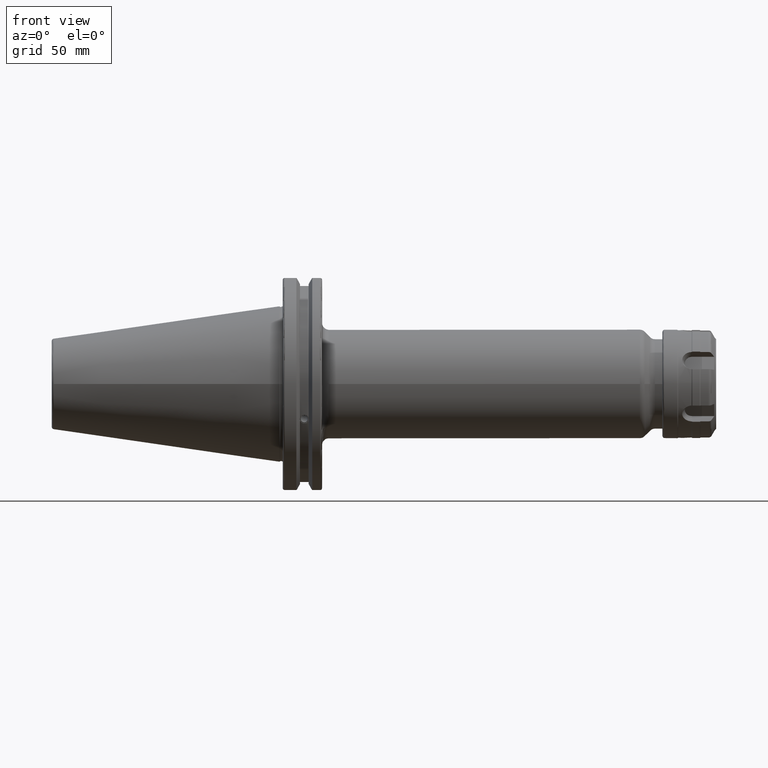
[diagram: clean part render]
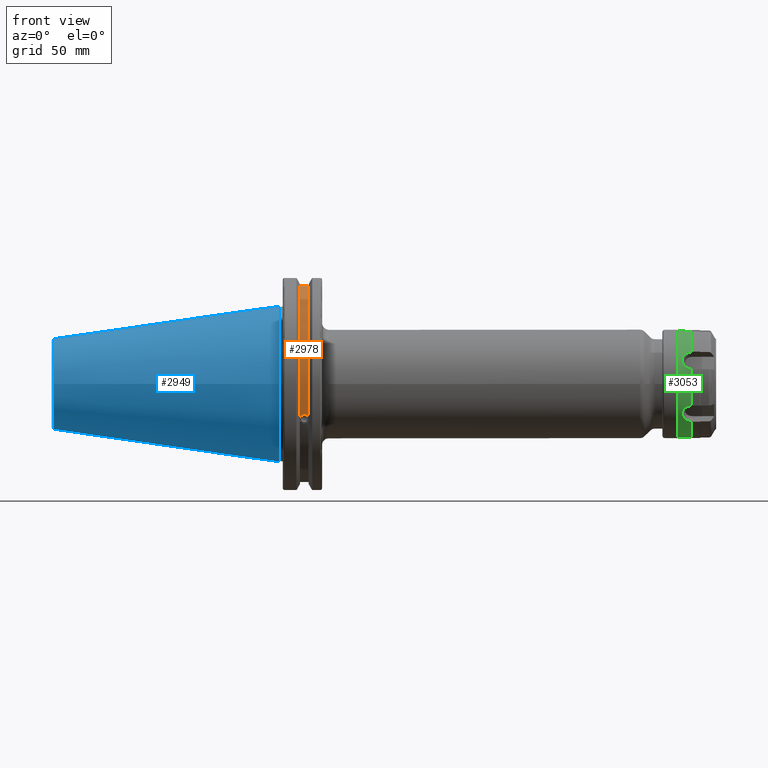
[diagram: same view with three faces highlighted in distinct colors, each labeled with its STEP entity id]
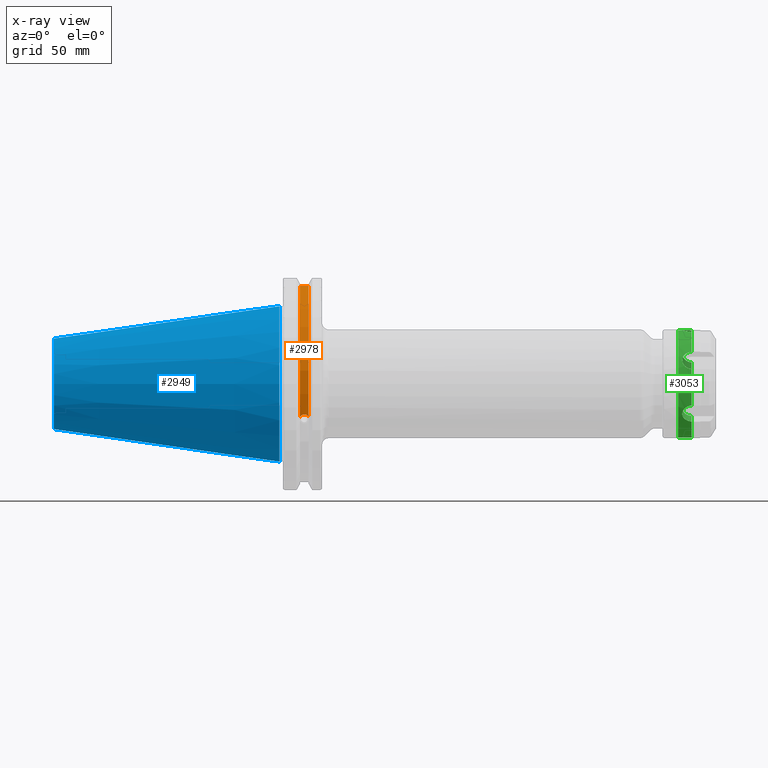
[diagram: x-ray of the same camera — body ghosted, the three highlighted faces saturated]
A machine part, front view with three faces highlighted in distinct colors.
The next image is the same camera in x-ray (body ghosted, the three faces saturated) — at least one of them is partly hidden behind the body in this view.
Their STEP definitions:

[orange] entity #2978 — the highlighted cylindrical surface (partial cylindrical patch) has radius 45.6435 mm, axis along (1, 0, 0).
#88=B_SPLINE_CURVE_WITH_KNOTS('',3,(#4626,#4627,#4628,#4629,#4630,#4631,
#4632,#4633,#4634,#4635,#4636,#4637,#4638,#4639),.UNSPECIFIED.,.F.,.F.,
(4,2,2,2,2,2,4),(0.40154831257669,0.474697095495631,0.553813286063443,0.632929476631254,
0.712045667199066,0.791161857766877,0.864310640685818),.UNSPECIFIED.);
#174=CYLINDRICAL_SURFACE('',#3303,45.6435);
#251=LINE('',#5088,#421);
#421=VECTOR('',#3748,10.);
#749=FACE_OUTER_BOUND('',#935,.T.);
#935=EDGE_LOOP('',(#2430,#2431,#2432,#2433));
#1112=CIRCLE('',#3302,45.6435);
#1113=CIRCLE('',#3304,45.6435);
#1242=VERTEX_POINT('',#4623);
#1243=VERTEX_POINT('',#4625);
#1313=VERTEX_POINT('',#5085);
#1314=VERTEX_POINT('',#5087);
#1563=EDGE_CURVE('',#1243,#1242,#88,.T.);
#1659=EDGE_CURVE('',#1314,#1313,#251,.T.);
#1737=EDGE_CURVE('',#1313,#1243,#1112,.T.);
#1738=EDGE_CURVE('',#1314,#1242,#1113,.T.);
#2430=ORIENTED_EDGE('',*,*,#1563,.T.);
#2431=ORIENTED_EDGE('',*,*,#1738,.F.);
#2432=ORIENTED_EDGE('',*,*,#1659,.T.);
#2433=ORIENTED_EDGE('',*,*,#1737,.T.);
#2978=ADVANCED_FACE('',(#749),#174,.T.);
#3302=AXIS2_PLACEMENT_3D('',#5296,#3917,#3918);
#3303=AXIS2_PLACEMENT_3D('',#5297,#3919,#3920);
#3304=AXIS2_PLACEMENT_3D('',#5298,#3921,#3922);
#3748=DIRECTION('',(-1.,0.,0.));
#3917=DIRECTION('center_axis',(1.,0.,0.));
#3918=DIRECTION('ref_axis',(0.,0.,-1.));
#3919=DIRECTION('center_axis',(1.,0.,0.));
#3920=DIRECTION('ref_axis',(0.,-0.888619069115281,0.458645996390125));
#3921=DIRECTION('center_axis',(1.,0.,0.));
#3922=DIRECTION('ref_axis',(0.,0.,-1.));
#4623=CARTESIAN_POINT('',(13.0491,-43.1779814500336,-14.7983448449669));
#4625=CARTESIAN_POINT('',(9.2191,-43.1779814500336,-14.7983448449669));
#4626=CARTESIAN_POINT('Ctrl Pts',(9.2191,-43.1779814500335,-14.7983448449669));
#4627=CARTESIAN_POINT('Ctrl Pts',(9.32532177598176,-43.2545173750974,-14.5750315766731));
#4628=CARTESIAN_POINT('Ctrl Pts',(9.47680807557666,-43.3223492818373,-14.3712521044637));
#4629=CARTESIAN_POINT('Ctrl Pts',(9.83560503400179,-43.4340904392251,-14.0300988117073));
#4630=CARTESIAN_POINT('Ctrl Pts',(10.0717203280543,-43.4832903960863,-13.8760243976176));
#4631=CARTESIAN_POINT('Ctrl Pts',(10.5891059167872,-43.54802519266,-13.6715068146718));
#4632=CARTESIAN_POINT('Ctrl Pts',(10.870379364774,-43.5636826100883,-13.6211104428929));
#4633=CARTESIAN_POINT('Ctrl Pts',(11.397820635226,-43.5636826100883,-13.6211104428929));
#4634=CARTESIAN_POINT('Ctrl Pts',(11.6790940832128,-43.54802519266,-13.6715068146718));
#4635=CARTESIAN_POINT('Ctrl Pts',(12.1964796719457,-43.4832903960863,-13.8760243976176));
#4636=CARTESIAN_POINT('Ctrl Pts',(12.4325949659982,-43.4340904392251,-14.0300988117073));
#4637=CARTESIAN_POINT('Ctrl Pts',(12.7913919244233,-43.3223492818373,-14.3712521044637));
#4638=CARTESIAN_POINT('Ctrl Pts',(12.9428782240182,-43.2545173750974,-14.5750315766731));
#4639=CARTESIAN_POINT('Ctrl Pts',(13.0491,-43.1779814500335,-14.7983448449669));
#5085=CARTESIAN_POINT('',(9.2191,-12.95,43.7678716897452));
#5087=CARTESIAN_POINT('',(13.0491,-12.95,43.7678716897452));
#5088=CARTESIAN_POINT('',(11.1341,-12.95,43.7678716897452));
#5296=CARTESIAN_POINT('Origin',(9.2191,0.,0.));
#5297=CARTESIAN_POINT('Origin',(11.1341,0.,0.));
#5298=CARTESIAN_POINT('Origin',(13.0491,0.,0.));

[blue] entity #2949 — the highlighted conical surface has half-angle 8.297 deg.
#269=LINE('',#5206,#439);
#439=VECTOR('',#3812,27.5166666666666);
#544=CONICAL_SURFACE('',#3258,27.5166666666666,0.14481249823894);
#720=FACE_OUTER_BOUND('',#904,.T.);
#904=EDGE_LOOP('',(#2291,#2292,#2293,#2294,#2295));
#1092=CIRCLE('',#3252,20.233121911427);
#1093=CIRCLE('',#3253,20.233121911427);
#1097=CIRCLE('',#3259,34.925);
#1334=VERTEX_POINT('',#5193);
#1335=VERTEX_POINT('',#5194);
#1338=VERTEX_POINT('',#5204);
#1692=EDGE_CURVE('',#1334,#1335,#1092,.T.);
#1693=EDGE_CURVE('',#1335,#1334,#1093,.T.);
#1697=EDGE_CURVE('',#1338,#1338,#1097,.T.);
#1698=EDGE_CURVE('',#1338,#1335,#269,.T.);
#2291=ORIENTED_EDGE('',*,*,#1697,.F.);
#2292=ORIENTED_EDGE('',*,*,#1698,.T.);
#2293=ORIENTED_EDGE('',*,*,#1692,.F.);
#2294=ORIENTED_EDGE('',*,*,#1693,.F.);
#2295=ORIENTED_EDGE('',*,*,#1698,.F.);
#2949=ADVANCED_FACE('',(#720),#544,.T.);
#3252=AXIS2_PLACEMENT_3D('',#5195,#3796,#3797);
#3253=AXIS2_PLACEMENT_3D('',#5196,#3798,#3799);
#3258=AXIS2_PLACEMENT_3D('',#5203,#3808,#3809);
#3259=AXIS2_PLACEMENT_3D('',#5205,#3810,#3811);
#3796=DIRECTION('center_axis',(-1.,0.,0.));
#3797=DIRECTION('ref_axis',(0.,-1.,3.06161699786838E-17));
#3798=DIRECTION('center_axis',(-1.,0.,0.));
#3799=DIRECTION('ref_axis',(0.,-1.,3.06161699786838E-17));
#3808=DIRECTION('center_axis',(1.,0.,0.));
#3809=DIRECTION('ref_axis',(0.,1.,0.));
#3810=DIRECTION('center_axis',(1.,0.,0.));
#3811=DIRECTION('ref_axis',(0.,0.,-1.));
#3812=DIRECTION('',(-0.989532981063281,0.144306893071729,1.76724974695192E-17));
#5193=CARTESIAN_POINT('',(-100.744306893072,-2.47784279855872E-15,20.233121911427));
#5194=CARTESIAN_POINT('',(-100.744306893072,-20.233121911427,-2.47784279855872E-15));
#5195=CARTESIAN_POINT('Origin',(-100.744306893072,0.,-3.09730349819841E-15));
#5196=CARTESIAN_POINT('Origin',(-100.744306893072,0.,-3.09730349819841E-15));
#5203=CARTESIAN_POINT('Origin',(-50.8,0.,0.));
#5204=CARTESIAN_POINT('',(-8.88178419700125E-15,-34.925,-4.27707894602213E-15));
#5205=CARTESIAN_POINT('Origin',(0.,0.,0.));
#5206=CARTESIAN_POINT('',(-50.8,-27.5166666666666,-3.3698197756538E-15));

[green] entity #3053 — the highlighted cylindrical surface (bore or boss wall) has radius 24.05 mm, axis along (1, -0, -0).
#121=B_SPLINE_CURVE_WITH_KNOTS('',3,(#5374,#5375,#5376,#5377,#5378,#5379,
#5380,#5381,#5382,#5383,#5384,#5385,#5386,#5387,#5388,#5389,#5390,#5391),
 .UNSPECIFIED.,.F.,.F.,(4,2,2,2,2,2,2,2,4),(1.33177682198836,1.46977822622577,
1.63254719622517,1.79653054028236,1.96051388433954,2.12449722839672,2.28848057245391,
2.45124954245331,2.58925094669072),.UNSPECIFIED.);
#126=B_SPLINE_CURVE_WITH_KNOTS('',3,(#5464,#5465,#5466,#5467,#5468,#5469,
#5470,#5471,#5472,#5473,#5474,#5475,#5476,#5477,#5478,#5479,#5480,#5481),
 .UNSPECIFIED.,.F.,.F.,(4,2,2,2,2,2,2,2,4),(1.33177682198836,1.46977822622577,
1.63254719622517,1.79653054028236,1.96051388433954,2.12449722839672,2.28848057245391,
2.45124954245331,2.58925094669072),.UNSPECIFIED.);
#131=B_SPLINE_CURVE_WITH_KNOTS('',3,(#5558,#5559,#5560,#5561,#5562,#5563,
#5564,#5565,#5566,#5567),.UNSPECIFIED.,.F.,.F.,(4,2,2,2,4),(1.96051388433954,
2.12449722839672,2.28848057245391,2.45124954245331,2.58925094669072),
 .UNSPECIFIED.);
#132=B_SPLINE_CURVE_WITH_KNOTS('',3,(#5569,#5570,#5571,#5572,#5573,#5574,
#5575,#5576,#5577,#5578),.UNSPECIFIED.,.F.,.F.,(4,2,2,2,4),(1.33177682198836,
1.46977822622577,1.63254719622517,1.79653054028236,1.96051388433954),
 .UNSPECIFIED.);
#137=B_SPLINE_CURVE_WITH_KNOTS('',3,(#5651,#5652,#5653,#5654,#5655,#5656,
#5657,#5658,#5659,#5660,#5661,#5662,#5663,#5664,#5665,#5666,#5667,#5668),
 .UNSPECIFIED.,.F.,.F.,(4,2,2,2,2,2,2,2,4),(1.33177682198836,1.46977822622577,
1.63254719622517,1.79653054028236,1.96051388433954,2.12449722839672,2.28848057245391,
2.45124954245331,2.58925094669072),.UNSPECIFIED.);
#142=B_SPLINE_CURVE_WITH_KNOTS('',3,(#5741,#5742,#5743,#5744,#5745,#5746,
#5747,#5748,#5749,#5750,#5751,#5752,#5753,#5754,#5755,#5756,#5757,#5758),
 .UNSPECIFIED.,.F.,.F.,(4,2,2,2,2,2,2,2,4),(1.33177682198836,1.46977822622577,
1.63254719622517,1.79653054028236,1.96051388433954,2.12449722839672,2.28848057245391,
2.45124954245331,2.58925094669072),.UNSPECIFIED.);
#148=B_SPLINE_CURVE_WITH_KNOTS('',3,(#5895,#5896,#5897,#5898,#5899,#5900,
#5901,#5902,#5903,#5904,#5905,#5906,#5907,#5908,#5909,#5910,#5911,#5912),
 .UNSPECIFIED.,.F.,.F.,(4,2,2,2,2,2,2,2,4),(1.33177682198836,1.46977822622577,
1.63254719622517,1.79653054028236,1.96051388433954,2.12449722839672,2.28848057245391,
2.45124954245331,2.58925094669072),.UNSPECIFIED.);
#193=CYLINDRICAL_SURFACE('',#3452,24.05);
#362=LINE('',#6007,#532);
#532=VECTOR('',#4293,24.05);
#824=FACE_OUTER_BOUND('',#1017,.T.);
#1017=EDGE_LOOP('',(#2825,#2826,#2827,#2828,#2829,#2830,#2831,#2832,#2833,
#2834,#2835,#2836,#2837,#2838,#2839,#2840));
#1147=CIRCLE('',#3384,24.05);
#1148=CIRCLE('',#3386,24.05);
#1149=CIRCLE('',#3388,24.05);
#1150=CIRCLE('',#3390,24.05);
#1151=CIRCLE('',#3392,24.05);
#1185=CIRCLE('',#3451,24.05);
#1186=CIRCLE('',#3453,24.05);
#1371=VERTEX_POINT('',#5368);
#1372=VERTEX_POINT('',#5373);
#1389=VERTEX_POINT('',#5458);
#1390=VERTEX_POINT('',#5463);
#1408=VERTEX_POINT('',#5552);
#1409=VERTEX_POINT('',#5557);
#1410=VERTEX_POINT('',#5568);
#1427=VERTEX_POINT('',#5645);
#1428=VERTEX_POINT('',#5650);
#1445=VERTEX_POINT('',#5735);
#1446=VERTEX_POINT('',#5740);
#1460=VERTEX_POINT('',#5861);
#1463=VERTEX_POINT('',#5872);
#1493=VERTEX_POINT('',#6002);
#1760=EDGE_CURVE('',#1372,#1371,#121,.T.);
#1781=EDGE_CURVE('',#1390,#1389,#126,.T.);
#1803=EDGE_CURVE('',#1409,#1408,#131,.T.);
#1804=EDGE_CURVE('',#1410,#1409,#132,.T.);
#1825=EDGE_CURVE('',#1428,#1427,#137,.T.);
#1846=EDGE_CURVE('',#1446,#1445,#142,.T.);
#1887=EDGE_CURVE('',#1372,#1460,#1147,.T.);
#1892=EDGE_CURVE('',#1463,#1445,#1148,.T.);
#1893=EDGE_CURVE('',#1446,#1427,#1149,.T.);
#1894=EDGE_CURVE('',#1428,#1408,#1150,.T.);
#1895=EDGE_CURVE('',#1410,#1389,#1151,.T.);
#1901=EDGE_CURVE('',#1463,#1460,#148,.T.);
#1943=EDGE_CURVE('',#1493,#1493,#1185,.T.);
#1945=EDGE_CURVE('',#1390,#1371,#1186,.T.);
#1946=EDGE_CURVE('',#1409,#1493,#362,.T.);
#2825=ORIENTED_EDGE('',*,*,#1760,.T.);
#2826=ORIENTED_EDGE('',*,*,#1945,.F.);
#2827=ORIENTED_EDGE('',*,*,#1781,.T.);
#2828=ORIENTED_EDGE('',*,*,#1895,.F.);
#2829=ORIENTED_EDGE('',*,*,#1804,.T.);
#2830=ORIENTED_EDGE('',*,*,#1946,.T.);
#2831=ORIENTED_EDGE('',*,*,#1943,.T.);
#2832=ORIENTED_EDGE('',*,*,#1946,.F.);
#2833=ORIENTED_EDGE('',*,*,#1803,.T.);
#2834=ORIENTED_EDGE('',*,*,#1894,.F.);
#2835=ORIENTED_EDGE('',*,*,#1825,.T.);
#2836=ORIENTED_EDGE('',*,*,#1893,.F.);
#2837=ORIENTED_EDGE('',*,*,#1846,.T.);
#2838=ORIENTED_EDGE('',*,*,#1892,.F.);
#2839=ORIENTED_EDGE('',*,*,#1901,.T.);
#2840=ORIENTED_EDGE('',*,*,#1887,.F.);
#3053=ADVANCED_FACE('',(#824),#193,.T.);
#3384=AXIS2_PLACEMENT_3D('',#5862,#4137,#4138);
#3386=AXIS2_PLACEMENT_3D('',#5877,#4143,#4144);
#3388=AXIS2_PLACEMENT_3D('',#5879,#4147,#4148);
#3390=AXIS2_PLACEMENT_3D('',#5881,#4151,#4152);
#3392=AXIS2_PLACEMENT_3D('',#5883,#4155,#4156);
#3451=AXIS2_PLACEMENT_3D('',#6003,#4286,#4287);
#3452=AXIS2_PLACEMENT_3D('',#6005,#4289,#4290);
#3453=AXIS2_PLACEMENT_3D('',#6006,#4291,#4292);
#4137=DIRECTION('center_axis',(1.,0.,0.));
#4138=DIRECTION('ref_axis',(0.,0.,-1.));
#4143=DIRECTION('center_axis',(1.,0.,0.));
#4144=DIRECTION('ref_axis',(0.,0.,-1.));
#4147=DIRECTION('center_axis',(1.,0.,0.));
#4148=DIRECTION('ref_axis',(0.,0.,-1.));
#4151=DIRECTION('center_axis',(1.,0.,0.));
#4152=DIRECTION('ref_axis',(0.,0.,-1.));
#4155=DIRECTION('center_axis',(1.,0.,0.));
#4156=DIRECTION('ref_axis',(0.,0.,-1.));
#4286=DIRECTION('center_axis',(1.,0.,0.));
#4287=DIRECTION('ref_axis',(0.,0.,-1.));
#4289=DIRECTION('center_axis',(1.,0.,0.));
#4290=DIRECTION('ref_axis',(0.,1.,0.));
#4291=DIRECTION('center_axis',(1.,0.,0.));
#4292=DIRECTION('ref_axis',(0.,0.,-1.));
#4293=DIRECTION('',(-1.,0.,0.));
#5368=CARTESIAN_POINT('',(13.,8.15388704965498,-22.6255746000288));
#5373=CARTESIAN_POINT('',(13.,15.5173788540174,-18.3742606246046));
#5374=CARTESIAN_POINT('Ctrl Pts',(13.,15.5173788540174,-18.3742606246046));
#5375=CARTESIAN_POINT('Ctrl Pts',(12.5319059885651,15.497325248082,-18.3911962394327));
#5376=CARTESIAN_POINT('Ctrl Pts',(12.0459918975084,15.4178124321493,-18.4587812021441));
#5377=CARTESIAN_POINT('Ctrl Pts',(11.0556605061734,15.1118316312769,-18.7104520136826));
#5378=CARTESIAN_POINT('Ctrl Pts',(10.5636163431806,14.8598649726816,-18.913691490609));
#5379=CARTESIAN_POINT('Ctrl Pts',(9.7769528201378,14.2603291193738,-19.3697814955112));
#5380=CARTESIAN_POINT('Ctrl Pts',(9.43072216461122,13.8710694330103,-19.6539481764679));
#5381=CARTESIAN_POINT('Ctrl Pts',(8.96890212339475,12.9904362388623,-20.2467975940056));
#5382=CARTESIAN_POINT('Ctrl Pts',(8.85349376206146,12.4983791391701,-20.5546053875871));
#5383=CARTESIAN_POINT('Ctrl Pts',(8.85349376206146,11.5516208608298,-21.1012165344444));
#5384=CARTESIAN_POINT('Ctrl Pts',(8.96890212339475,11.0390229422593,-21.3734465860995));
#5385=CARTESIAN_POINT('Ctrl Pts',(9.43072216461122,10.0852836889789,-21.8396725948787));
#5386=CARTESIAN_POINT('Ctrl Pts',(9.7769528201378,9.6445582811795,-22.0346980314604));
#5387=CARTESIAN_POINT('Ctrl Pts',(10.5636163431806,8.94980482386809,-22.3258663084533));
#5388=CARTESIAN_POINT('Ctrl Pts',(11.0556605061733,8.6478109445003,-22.4424560972404));
#5389=CARTESIAN_POINT('Ctrl Pts',(12.0459918975084,8.27686722788077,-22.5816078380969));
#5390=CARTESIAN_POINT('Ctrl Pts',(12.5319059885651,8.17858052529251,-22.6166754752653));
#5391=CARTESIAN_POINT('Ctrl Pts',(13.,8.15388704965499,-22.6255746000288));
#5458=CARTESIAN_POINT('',(13.,-15.5173788540174,-18.3742606246046));
#5463=CARTESIAN_POINT('',(13.,-8.15388704965502,-22.6255746000288));
#5464=CARTESIAN_POINT('Ctrl Pts',(13.,-8.15388704965502,-22.6255746000288));
#5465=CARTESIAN_POINT('Ctrl Pts',(12.5319059885651,-8.17858052529253,-22.6166754752653));
#5466=CARTESIAN_POINT('Ctrl Pts',(12.0459918975084,-8.2768672278808,-22.5816078380969));
#5467=CARTESIAN_POINT('Ctrl Pts',(11.0556605061733,-8.64781094450032,-22.4424560972404));
#5468=CARTESIAN_POINT('Ctrl Pts',(10.5636163431806,-8.94980482386811,-22.3258663084533));
#5469=CARTESIAN_POINT('Ctrl Pts',(9.7769528201378,-9.64455828117953,-22.0346980314603));
#5470=CARTESIAN_POINT('Ctrl Pts',(9.43072216461122,-10.0852836889789,-21.8396725948787));
#5471=CARTESIAN_POINT('Ctrl Pts',(8.96890212339475,-11.0390229422593,-21.3734465860995));
#5472=CARTESIAN_POINT('Ctrl Pts',(8.85349376206146,-11.5516208608299,-21.1012165344444));
#5473=CARTESIAN_POINT('Ctrl Pts',(8.85349376206146,-12.4983791391702,-20.5546053875871));
#5474=CARTESIAN_POINT('Ctrl Pts',(8.96890212339475,-12.9904362388623,-20.2467975940055));
#5475=CARTESIAN_POINT('Ctrl Pts',(9.43072216461122,-13.8710694330103,-19.6539481764679));
#5476=CARTESIAN_POINT('Ctrl Pts',(9.7769528201378,-14.2603291193739,-19.3697814955112));
#5477=CARTESIAN_POINT('Ctrl Pts',(10.5636163431806,-14.8598649726816,-18.9136914906089));
#5478=CARTESIAN_POINT('Ctrl Pts',(11.0556605061734,-15.111831631277,-18.7104520136825));
#5479=CARTESIAN_POINT('Ctrl Pts',(12.0459918975084,-15.4178124321493,-18.4587812021441));
#5480=CARTESIAN_POINT('Ctrl Pts',(12.5319059885651,-15.497325248082,-18.3911962394326));
#5481=CARTESIAN_POINT('Ctrl Pts',(13.,-15.5173788540174,-18.3742606246046));
#5552=CARTESIAN_POINT('',(13.,-23.6712659036724,4.25131397542422));
#5557=CARTESIAN_POINT('',(8.85349376206147,-24.05,8.86586151353765E-16));
#5558=CARTESIAN_POINT('Ctrl Pts',(8.85349376206147,-24.05,4.57966997657877E-15));
#5559=CARTESIAN_POINT('Ctrl Pts',(8.85349376206147,-24.05,0.546611146857283));
#5560=CARTESIAN_POINT('Ctrl Pts',(8.96890212339475,-24.0294591811216,1.12664899209394));
#5561=CARTESIAN_POINT('Ctrl Pts',(9.43072216461122,-23.9563531219892,2.18572441841078));
#5562=CARTESIAN_POINT('Ctrl Pts',(9.7769528201378,-23.9048874005534,2.66491653594913));
#5563=CARTESIAN_POINT('Ctrl Pts',(10.5636163431806,-23.8096697965497,3.41217481784437));
#5564=CARTESIAN_POINT('Ctrl Pts',(11.0556605061734,-23.7596425757773,3.73200408355781));
#5565=CARTESIAN_POINT('Ctrl Pts',(12.0459918975084,-23.6946796600301,4.1228266359528));
#5566=CARTESIAN_POINT('Ctrl Pts',(12.5319059885651,-23.6759057733745,4.22547923583265));
#5567=CARTESIAN_POINT('Ctrl Pts',(13.,-23.6712659036724,4.25131397542422));
#5568=CARTESIAN_POINT('',(13.,-23.6712659036724,-4.25131397542421));
#5569=CARTESIAN_POINT('Ctrl Pts',(13.,-23.6712659036724,-4.25131397542422));
#5570=CARTESIAN_POINT('Ctrl Pts',(12.5319059885651,-23.6759057733745,-4.22547923583264));
#5571=CARTESIAN_POINT('Ctrl Pts',(12.0459918975084,-23.6946796600301,-4.12282663595279));
#5572=CARTESIAN_POINT('Ctrl Pts',(11.0556605061734,-23.7596425757773,-3.7320040835578));
#5573=CARTESIAN_POINT('Ctrl Pts',(10.5636163431806,-23.8096697965497,-3.41217481784436));
#5574=CARTESIAN_POINT('Ctrl Pts',(9.7769528201378,-23.9048874005534,-2.66491653594912));
#5575=CARTESIAN_POINT('Ctrl Pts',(9.43072216461122,-23.9563531219892,-2.18572441841078));
#5576=CARTESIAN_POINT('Ctrl Pts',(8.96890212339475,-24.0294591811216,-1.12664899209393));
#5577=CARTESIAN_POINT('Ctrl Pts',(8.85349376206146,-24.05,-0.546611146857273));
#5578=CARTESIAN_POINT('Ctrl Pts',(8.85349376206146,-24.05,4.44089209850063E-15));
#5645=CARTESIAN_POINT('',(13.,-8.153887049655,22.6255746000288));
#5650=CARTESIAN_POINT('',(13.,-15.5173788540174,18.3742606246046));
#5651=CARTESIAN_POINT('Ctrl Pts',(13.,-15.5173788540174,18.3742606246046));
#5652=CARTESIAN_POINT('Ctrl Pts',(12.5319059885651,-15.497325248082,18.3911962394327));
#5653=CARTESIAN_POINT('Ctrl Pts',(12.0459918975084,-15.4178124321493,18.4587812021441));
#5654=CARTESIAN_POINT('Ctrl Pts',(11.0556605061734,-15.111831631277,18.7104520136826));
#5655=CARTESIAN_POINT('Ctrl Pts',(10.5636163431806,-14.8598649726816,18.913691490609));
#5656=CARTESIAN_POINT('Ctrl Pts',(9.7769528201378,-14.2603291193739,19.3697814955112));
#5657=CARTESIAN_POINT('Ctrl Pts',(9.43072216461122,-13.8710694330103,19.6539481764679));
#5658=CARTESIAN_POINT('Ctrl Pts',(8.96890212339475,-12.9904362388623,20.2467975940055));
#5659=CARTESIAN_POINT('Ctrl Pts',(8.85349376206146,-12.4983791391701,20.5546053875871));
#5660=CARTESIAN_POINT('Ctrl Pts',(8.85349376206146,-11.5516208608298,21.1012165344444));
#5661=CARTESIAN_POINT('Ctrl Pts',(8.96890212339475,-11.0390229422593,21.3734465860995));
#5662=CARTESIAN_POINT('Ctrl Pts',(9.43072216461122,-10.0852836889789,21.8396725948787));
#5663=CARTESIAN_POINT('Ctrl Pts',(9.7769528201378,-9.64455828117951,22.0346980314604));
#5664=CARTESIAN_POINT('Ctrl Pts',(10.5636163431806,-8.9498048238681,22.3258663084533));
#5665=CARTESIAN_POINT('Ctrl Pts',(11.0556605061733,-8.6478109445003,22.4424560972404));
#5666=CARTESIAN_POINT('Ctrl Pts',(12.0459918975084,-8.27686722788078,22.5816078380969));
#5667=CARTESIAN_POINT('Ctrl Pts',(12.5319059885651,-8.17858052529252,22.6166754752653));
#5668=CARTESIAN_POINT('Ctrl Pts',(13.,-8.153887049655,22.6255746000288));
#5735=CARTESIAN_POINT('',(13.,15.5173788540174,18.3742606246046));
#5740=CARTESIAN_POINT('',(13.,8.15388704965499,22.6255746000288));
#5741=CARTESIAN_POINT('Ctrl Pts',(13.,8.15388704965501,22.6255746000288));
#5742=CARTESIAN_POINT('Ctrl Pts',(12.5319059885651,8.17858052529253,22.6166754752653));
#5743=CARTESIAN_POINT('Ctrl Pts',(12.0459918975084,8.27686722788079,22.5816078380969));
#5744=CARTESIAN_POINT('Ctrl Pts',(11.0556605061733,8.64781094450031,22.4424560972404));
#5745=CARTESIAN_POINT('Ctrl Pts',(10.5636163431806,8.9498048238681,22.3258663084533));
#5746=CARTESIAN_POINT('Ctrl Pts',(9.7769528201378,9.64455828117952,22.0346980314603));
#5747=CARTESIAN_POINT('Ctrl Pts',(9.43072216461122,10.0852836889789,21.8396725948787));
#5748=CARTESIAN_POINT('Ctrl Pts',(8.96890212339475,11.0390229422593,21.3734465860995));
#5749=CARTESIAN_POINT('Ctrl Pts',(8.85349376206146,11.5516208608299,21.1012165344444));
#5750=CARTESIAN_POINT('Ctrl Pts',(8.85349376206146,12.4983791391702,20.5546053875871));
#5751=CARTESIAN_POINT('Ctrl Pts',(8.96890212339475,12.9904362388623,20.2467975940055));
#5752=CARTESIAN_POINT('Ctrl Pts',(9.43072216461122,13.8710694330103,19.6539481764679));
#5753=CARTESIAN_POINT('Ctrl Pts',(9.7769528201378,14.2603291193739,19.3697814955112));
#5754=CARTESIAN_POINT('Ctrl Pts',(10.5636163431806,14.8598649726816,18.9136914906089));
#5755=CARTESIAN_POINT('Ctrl Pts',(11.0556605061734,15.111831631277,18.7104520136825));
#5756=CARTESIAN_POINT('Ctrl Pts',(12.0459918975084,15.4178124321493,18.4587812021441));
#5757=CARTESIAN_POINT('Ctrl Pts',(12.5319059885651,15.497325248082,18.3911962394326));
#5758=CARTESIAN_POINT('Ctrl Pts',(13.,15.5173788540174,18.3742606246046));
#5861=CARTESIAN_POINT('',(13.,23.6712659036724,-4.25131397542422));
#5862=CARTESIAN_POINT('Origin',(13.,0.,0.));
#5872=CARTESIAN_POINT('',(13.,23.6712659036724,4.25131397542422));
#5877=CARTESIAN_POINT('Origin',(13.,0.,0.));
#5879=CARTESIAN_POINT('Origin',(13.,0.,0.));
#5881=CARTESIAN_POINT('Origin',(13.,0.,0.));
#5883=CARTESIAN_POINT('Origin',(13.,0.,0.));
#5895=CARTESIAN_POINT('Ctrl Pts',(13.,23.6712659036724,4.25131397542422));
#5896=CARTESIAN_POINT('Ctrl Pts',(12.5319059885651,23.6759057733745,4.22547923583264));
#5897=CARTESIAN_POINT('Ctrl Pts',(12.0459918975084,23.6946796600301,4.1228266359528));
#5898=CARTESIAN_POINT('Ctrl Pts',(11.0556605061734,23.7596425757773,3.73200408355781));
#5899=CARTESIAN_POINT('Ctrl Pts',(10.5636163431806,23.8096697965497,3.41217481784437));
#5900=CARTESIAN_POINT('Ctrl Pts',(9.7769528201378,23.9048874005534,2.66491653594913));
#5901=CARTESIAN_POINT('Ctrl Pts',(9.43072216461122,23.9563531219892,2.18572441841078));
#5902=CARTESIAN_POINT('Ctrl Pts',(8.96890212339475,24.0294591811216,1.12664899209394));
#5903=CARTESIAN_POINT('Ctrl Pts',(8.85349376206146,24.05,0.546611146857279));
#5904=CARTESIAN_POINT('Ctrl Pts',(8.85349376206146,24.05,-0.546611146857278));
#5905=CARTESIAN_POINT('Ctrl Pts',(8.96890212339475,24.0294591811216,-1.12664899209394));
#5906=CARTESIAN_POINT('Ctrl Pts',(9.43072216461122,23.9563531219892,-2.18572441841078));
#5907=CARTESIAN_POINT('Ctrl Pts',(9.7769528201378,23.9048874005534,-2.66491653594913));
#5908=CARTESIAN_POINT('Ctrl Pts',(10.5636163431806,23.8096697965497,-3.41217481784437));
#5909=CARTESIAN_POINT('Ctrl Pts',(11.0556605061733,23.7596425757773,-3.73200408355781));
#5910=CARTESIAN_POINT('Ctrl Pts',(12.0459918975084,23.6946796600301,-4.1228266359528));
#5911=CARTESIAN_POINT('Ctrl Pts',(12.5319059885651,23.6759057733745,-4.22547923583264));
#5912=CARTESIAN_POINT('Ctrl Pts',(13.,23.6712659036724,-4.25131397542422));
#6002=CARTESIAN_POINT('',(7.,-24.05,-2.94527555194938E-15));
#6003=CARTESIAN_POINT('Origin',(7.,0.,0.));
#6005=CARTESIAN_POINT('Origin',(10.,0.,0.));
#6006=CARTESIAN_POINT('Origin',(13.,0.,0.));
#6007=CARTESIAN_POINT('',(10.,-24.05,-2.94527555194938E-15));